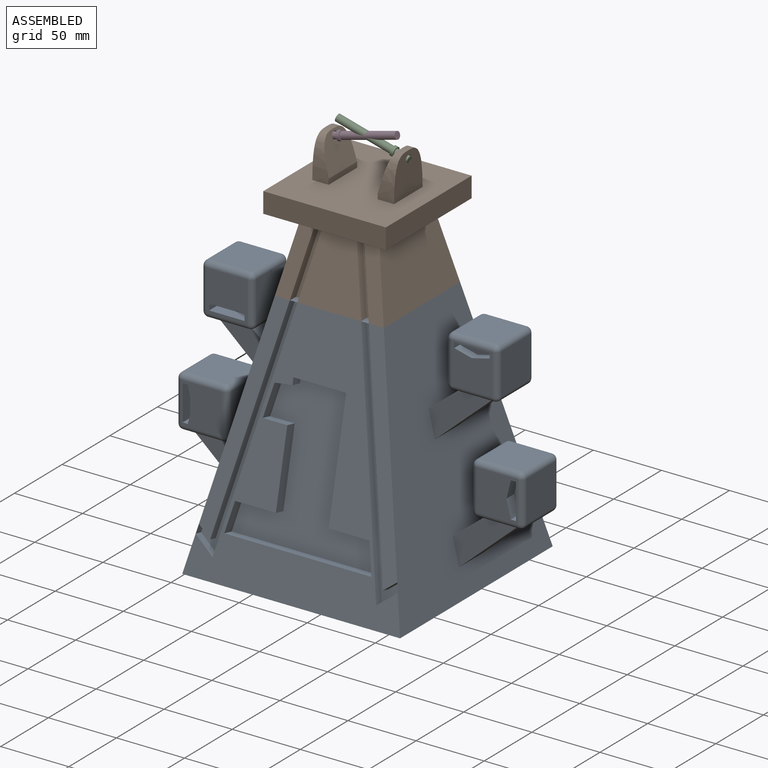
[diagram: assembled view]
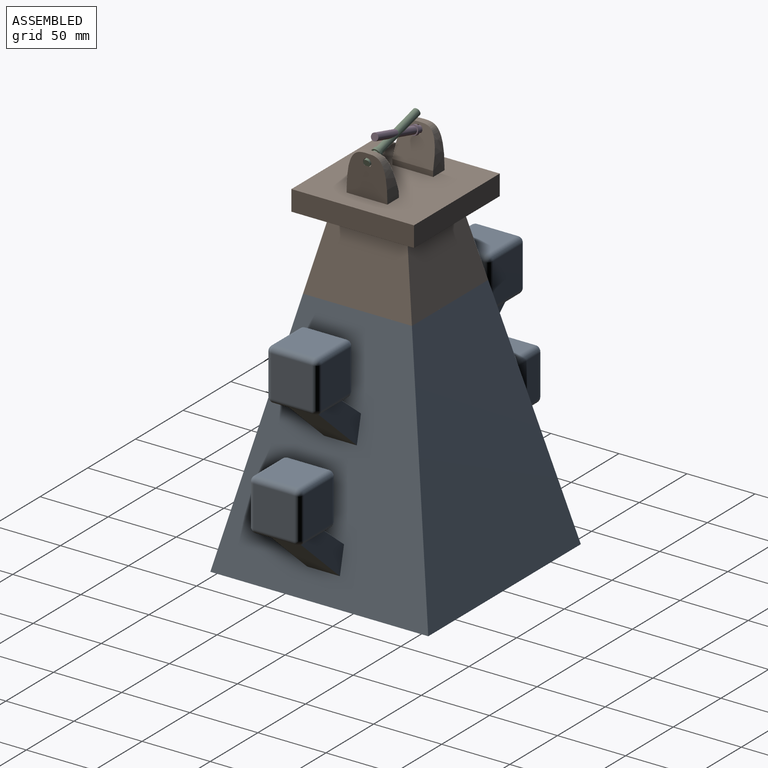
[diagram: assembled view, second angle]
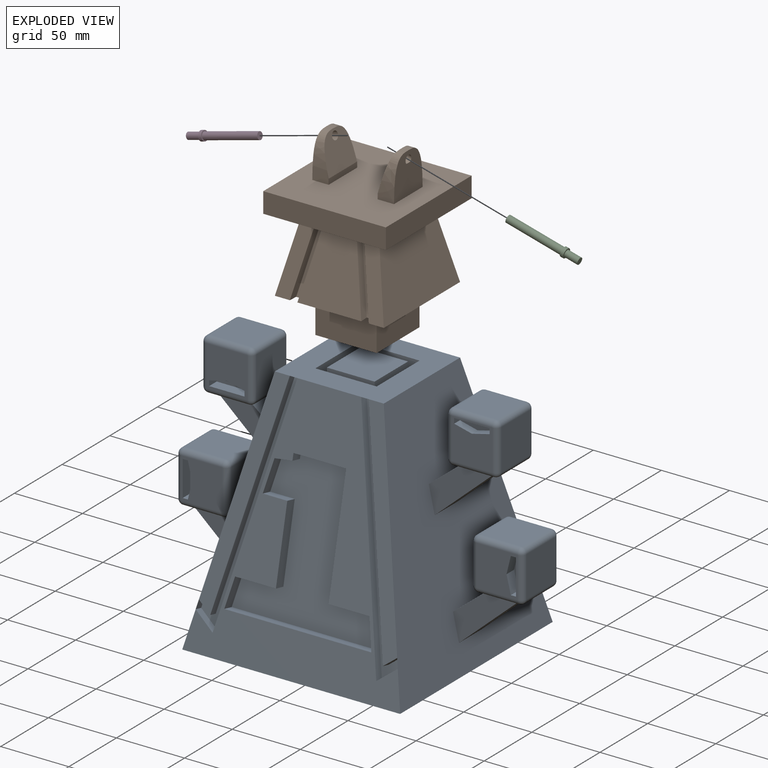
[diagram: exploded view]
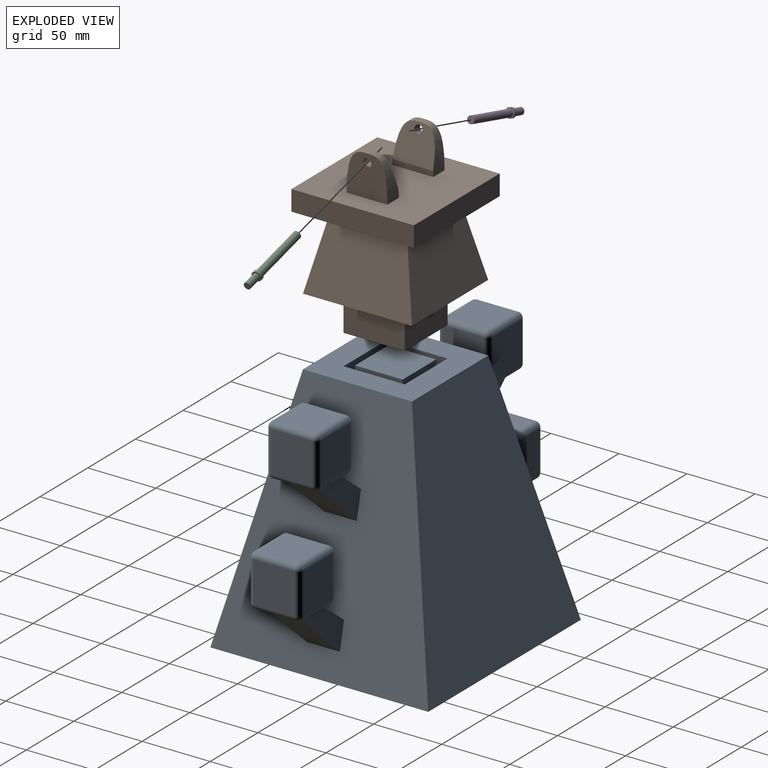
[diagram: exploded view, second angle]
ASSEMBLY  parts=4 mates=7
PART A: 300 faces, bbox 254.8x160x180 mm
  f0: plane 175x149.76mm, normal (-0.98,0,-0.22), area 19347.5mm2, adj f2,f4,f195,f205,f214,f219,f226,f227
  f1: plane 145x25mm, normal (1,0,0), area 3433mm2, adj f3,f4,f257,f284,f293,f295,f296
  f2: plane 149.76x25.27mm, normal (0,0.98,-0.22), area 3042mm2, adj f0,f4,f196,f208,f210,f276,f277,f280
  f3: plane 145x25mm, normal (0,-1,0), area 3433mm2, adj f1,f4,f257,f285,f286,f287,f288
  f4: plane 160x160mm, normal (0,0,-1), area 7778.2mm2, adj f0,f1,f2,f3,f5,f13,f14,f51
  f5: plane 180x160mm, normal (0,-0.98,0.22), area 10842.1mm2, adj f4,f12,f13,f14,f166,f167,f168,f169
  f6: plane 154.82x43.82mm, normal (0,-0.98,0.22), area 1708.4mm2, adj f12,f14,f182,f183
  f7: plane 154.82x43.82mm, normal (0,-0.98,0.22), area 1708.4mm2, adj f12,f13,f188,f189
  f8: plane 30x30mm, normal (0,-1,0), area 759.6mm2, adj f105,f106,f115,f116,f160,f161,f162,f163
  f9: plane 30x30mm, normal (0,-1,0), area 759.6mm2, adj f65,f66,f75,f76,f154,f155,f156,f157
  f10: plane 30x30mm, normal (0,-1,0), area 759.6mm2, adj f125,f126,f135,f136,f148,f149,f150,f151
  f11: plane 30x30mm, normal (0,-1,0), area 759.6mm2, adj f85,f86,f95,f96,f142,f143,f144,f145
  f12: plane 80x80mm, normal (0,0,1), area 4375mm2, adj f5,f6,f7,f13,f14,f51,f55,f56
  f13: plane 180x160mm, normal (0.98,0,0.22), area 21166.9mm2, adj f4,f5,f7,f12,f23,f24,f25,f26
  f14: plane 180x160mm, normal (-0.98,0,0.22), area 21166.9mm2, adj f4,f5,f6,f12,f15,f16,f17,f18
  f15: plane 44.26x39.37mm, normal (-0.66,0,-0.75), area 1421.6mm2, adj f14,f17,f18,f36
  f16: plane 24.54x24mm, normal (0.63,0,0.78), area 757.4mm2, adj f14,f17,f18,f36
  f17: plane 48.6x39.37mm, normal (0,-1,0), area 756.2mm2, adj f14,f15,f16,f36
  f18: plane 48.6x39.37mm, normal (0,1,0), area 756.2mm2, adj f14,f15,f16,f36
  f19: plane 44.83x39.89mm, normal (-0.66,0,-0.75), area 1440.2mm2, adj f14,f21,f22,f31
  f20: plane 25.17x24mm, normal (0.63,0,0.78), area 777.1mm2, adj f14,f21,f22,f31
  f21: plane 49.17x39.89mm, normal (0,-1,0), area 768.6mm2, adj f14,f19,f20,f31
  f22: plane 49.17x39.89mm, normal (0,1,0), area 768.6mm2, adj f14,f19,f20,f31
  f23: plane 44.83x39.89mm, normal (0.66,0,-0.75), area 1440.2mm2, adj f13,f25,f26,f49
  f24: plane 25.17x24mm, normal (-0.63,0,0.78), area 777.1mm2, adj f13,f25,f26,f49
  f25: plane 49.17x39.89mm, normal (0,-1,0), area 768.6mm2, adj f13,f23,f24,f49
  f26: plane 49.17x39.89mm, normal (0,1,0), area 768.6mm2, adj f13,f23,f24,f49
  f27: plane 44.26x39.37mm, normal (0.66,0,-0.75), area 1421.6mm2, adj f13,f29,f30,f42
  f28: plane 24.54x24mm, normal (-0.63,0,0.78), area 757.4mm2, adj f13,f29,f30,f42
  f29: plane 48.6x39.37mm, normal (0,-1,0), area 756.2mm2, adj f13,f27,f28,f42
  f30: plane 48.6x39.37mm, normal (0,1,0), area 756.2mm2, adj f13,f27,f28,f42
  f31: plane 30x30mm, normal (0,0,-1), area 324mm2, adj f19,f20,f21,f22,f110,f115,f118,f121
  f32: plane 30x30mm, normal (1,0,0), area 900mm2, adj f107,f116,f117,f121
  f33: plane 30x30mm, normal (0,0,1), area 900mm2, adj f102,f106,f107,f108
  f34: plane 30x30mm, normal (-1,0,0), area 900mm2, adj f102,f105,f109,f110
  f35: plane 30x30mm, normal (0,1,0), area 900mm2, adj f108,f109,f117,f118
  f36: plane 30x30mm, normal (0,0,-1), area 322.6mm2, adj f15,f16,f17,f18,f127,f136,f137,f141
  f37: plane 30x30mm, normal (1,0,0), area 900mm2, adj f122,f126,f127,f128
  f38: plane 30x30mm, normal (0,0,1), area 900mm2, adj f122,f125,f129,f130
  f39: plane 30x30mm, normal (-1,0,0), area 900mm2, adj f130,f135,f138,f141
  f40: plane 30x30mm, normal (0,1,0), area 900mm2, adj f128,f129,f137,f138
  f41: plane 30x30mm, normal (-1,0,0), area 900mm2, adj f87,f96,f97,f101
  f42: plane 30x30mm, normal (0,0,-1), area 322.6mm2, adj f27,f28,f29,f30,f82,f86,f87,f88
  f43: plane 30x30mm, normal (1,0,0), area 900mm2, adj f82,f85,f89,f90
  f44: plane 30x30mm, normal (0,0,1), area 900mm2, adj f90,f95,f98,f101
  f45: plane 30x30mm, normal (0,1,0), area 900mm2, adj f88,f89,f97,f98
  f46: plane 30x30mm, normal (1,0,0), area 900mm2, adj f67,f76,f77,f81
  f47: plane 30x30mm, normal (0,0,1), area 900mm2, adj f62,f66,f67,f68
  f48: plane 30x30mm, normal (-1,0,0), area 900mm2, adj f62,f65,f69,f70
  f49: plane 30x30mm, normal (0,0,-1), area 324mm2, adj f23,f24,f25,f26,f70,f75,f78,f81
  f50: plane 30x30mm, normal (0,1,0), area 900mm2, adj f68,f69,f77,f78
  f51: plane 180x160mm, normal (0,0.98,0.22), area 22126.9mm2, adj f4,f12,f13,f14
  f52: plane 35x30mm, normal (0,1,0), area 1050mm2, adj f53,f59,f60,f61
  f53: plane 35x30mm, normal (1,0,0), area 1050mm2, adj f52,f54,f60,f61
  f54: plane 35x30mm, normal (0,-1,0), area 1050mm2, adj f53,f59,f60,f61
  f55: plane 45x30mm, normal (-1,0,0), area 1350mm2, adj f12,f56,f58,f60
  f56: plane 45x30mm, normal (0,-1,0), area 1350mm2, adj f12,f55,f57,f60
  f57: plane 45x30mm, normal (1,0,0), area 1350mm2, adj f12,f56,f58,f60
  f58: plane 45x30mm, normal (0,1,0), area 1350mm2, adj f12,f55,f57,f60
  f59: plane 35x30mm, normal (-1,0,0), area 1050mm2, adj f52,f54,f60,f61
  f60: plane 45x45mm, normal (0,0,1), area 800mm2, adj f52,f53,f54,f55,f56,f57,f58,f59
  f61: plane 35x35mm, normal (0,0,1), area 1225mm2, adj f52,f53,f54,f59
  f62: cylinder r=4mm len=30mm, axis (0,1,0), area 188.5mm2, adj f47,f48,f63,f64
  f63: sphere r=4mm, area 25.1mm2, adj f62,f65,f66
  f64: sphere r=4mm, area 25.1mm2, adj f62,f68,f69
  f65: cylinder r=4mm len=30mm, axis (0,0,1), area 188.5mm2, adj f9,f48,f63,f71
  f66: cylinder r=4mm len=30mm, axis (1,0,0), area 188.5mm2, adj f9,f47,f63,f72
  f67: cylinder r=4mm len=30mm, axis (0,1,0), area 188.5mm2, adj f46,f47,f72,f73
  f68: cylinder r=4mm len=30mm, axis (-1,0,0), area 188.5mm2, adj f47,f50,f64,f73
  f69: cylinder r=4mm len=30mm, axis (0,0,-1), area 188.5mm2, adj f48,f50,f64,f74
  f70: cylinder r=4mm len=30mm, axis (0,-1,0), area 188.5mm2, adj f48,f49,f71,f74
  f71: sphere r=4mm, area 25.1mm2, adj f65,f70,f75
  f72: sphere r=4mm, area 25.1mm2, adj f66,f67,f76
  f73: sphere r=4mm, area 25.1mm2, adj f67,f68,f77
  f74: sphere r=4mm, area 25.1mm2, adj f69,f70,f78
  f75: cylinder r=4mm len=30mm, axis (-1,0,0), area 188.5mm2, adj f9,f49,f71,f79
  f76: cylinder r=4mm len=30mm, axis (0,0,-1), area 188.5mm2, adj f9,f46,f72,f79
  f77: cylinder r=4mm len=30mm, axis (0,0,1), area 188.5mm2, adj f46,f50,f73,f80
  f78: cylinder r=4mm len=30mm, axis (1,0,0), area 188.5mm2, adj f49,f50,f74,f80
  f79: sphere r=4mm, area 25.1mm2, adj f75,f76,f81
  f80: sphere r=4mm, area 25.1mm2, adj f77,f78,f81
  f81: cylinder r=4mm len=30mm, axis (0,-1,0), area 188.5mm2, adj f46,f49,f79,f80
  f82: cylinder r=4mm len=30mm, axis (0,1,0), area 188.5mm2, adj f42,f43,f83,f84
  f83: sphere r=4mm, area 25.1mm2, adj f82,f85,f86
  f84: sphere r=4mm, area 25.1mm2, adj f82,f88,f89
  f85: cylinder r=4mm len=30mm, axis (0,0,-1), area 188.5mm2, adj f11,f43,f83,f91
  f86: cylinder r=4mm len=30mm, axis (-1,0,0), area 188.5mm2, adj f11,f42,f83,f92
  f87: cylinder r=4mm len=30mm, axis (0,1,0), area 188.5mm2, adj f41,f42,f92,f93
  f88: cylinder r=4mm len=30mm, axis (1,0,0), area 188.5mm2, adj f42,f45,f84,f93
  f89: cylinder r=4mm len=30mm, axis (0,0,1), area 188.5mm2, adj f43,f45,f84,f94
  f90: cylinder r=4mm len=30mm, axis (0,1,0), area 188.5mm2, adj f43,f44,f91,f94
  f91: sphere r=4mm, area 25.1mm2, adj f85,f90,f95
  f92: sphere r=4mm, area 25.1mm2, adj f86,f87,f96
  f93: sphere r=4mm, area 25.1mm2, adj f87,f88,f97
  f94: sphere r=4mm, area 25.1mm2, adj f89,f90,f98
  f95: cylinder r=4mm len=30mm, axis (1,0,0), area 188.5mm2, adj f11,f44,f91,f99
  f96: cylinder r=4mm len=30mm, axis (0,0,1), area 188.5mm2, adj f11,f41,f92,f99
  f97: cylinder r=4mm len=30mm, axis (0,0,-1), area 188.5mm2, adj f41,f45,f93,f100
  f98: cylinder r=4mm len=30mm, axis (-1,0,0), area 188.5mm2, adj f44,f45,f94,f100
  f99: sphere r=4mm, area 25.1mm2, adj f95,f96,f101
  f100: sphere r=4mm, area 25.1mm2, adj f97,f98,f101
  f101: cylinder r=4mm len=30mm, axis (0,1,0), area 188.5mm2, adj f41,f44,f99,f100
  f102: cylinder r=4mm len=30mm, axis (0,1,0), area 188.5mm2, adj f33,f34,f103,f104
  f103: sphere r=4mm, area 25.1mm2, adj f102,f105,f106
  f104: sphere r=4mm, area 25.1mm2, adj f102,f108,f109
  f105: cylinder r=4mm len=30mm, axis (0,0,1), area 188.5mm2, adj f8,f34,f103,f111
  f106: cylinder r=4mm len=30mm, axis (1,0,0), area 188.5mm2, adj f8,f33,f103,f112
  f107: cylinder r=4mm len=30mm, axis (0,1,0), area 188.5mm2, adj f32,f33,f112,f113
  f108: cylinder r=4mm len=30mm, axis (-1,0,0), area 188.5mm2, adj f33,f35,f104,f113
  f109: cylinder r=4mm len=30mm, axis (0,0,-1), area 188.5mm2, adj f34,f35,f104,f114
  f110: cylinder r=4mm len=30mm, axis (0,-1,0), area 188.5mm2, adj f31,f34,f111,f114
  f111: sphere r=4mm, area 25.1mm2, adj f105,f110,f115
  f112: sphere r=4mm, area 25.1mm2, adj f106,f107,f116
  f113: sphere r=4mm, area 25.1mm2, adj f107,f108,f117
  f114: sphere r=4mm, area 25.1mm2, adj f109,f110,f118
  f115: cylinder r=4mm len=30mm, axis (-1,0,0), area 188.5mm2, adj f8,f31,f111,f119
  f116: cylinder r=4mm len=30mm, axis (0,0,-1), area 188.5mm2, adj f8,f32,f112,f119
  f117: cylinder r=4mm len=30mm, axis (0,0,1), area 188.5mm2, adj f32,f35,f113,f120
  f118: cylinder r=4mm len=30mm, axis (1,0,0), area 188.5mm2, adj f31,f35,f114,f120
  f119: sphere r=4mm, area 25.1mm2, adj f115,f116,f121
  f120: sphere r=4mm, area 25.1mm2, adj f117,f118,f121
  f121: cylinder r=4mm len=30mm, axis (0,-1,0), area 188.5mm2, adj f31,f32,f119,f120
  f122: cylinder r=4mm len=30mm, axis (0,1,0), area 188.5mm2, adj f37,f38,f123,f124
  f123: sphere r=4mm, area 25.1mm2, adj f122,f125,f126
  f124: sphere r=4mm, area 25.1mm2, adj f122,f128,f129
  f125: cylinder r=4mm len=30mm, axis (1,0,0), area 188.5mm2, adj f10,f38,f123,f131
  f126: cylinder r=4mm len=30mm, axis (0,0,-1), area 188.5mm2, adj f10,f37,f123,f132
  f127: cylinder r=4mm len=30mm, axis (0,1,0), area 188.5mm2, adj f36,f37,f132,f133
  f128: cylinder r=4mm len=30mm, axis (0,0,1), area 188.5mm2, adj f37,f40,f124,f133
  f129: cylinder r=4mm len=30mm, axis (-1,0,0), area 188.5mm2, adj f38,f40,f124,f134
  f130: cylinder r=4mm len=30mm, axis (0,1,0), area 188.5mm2, adj f38,f39,f131,f134
  f131: sphere r=4mm, area 25.1mm2, adj f125,f130,f135
  f132: sphere r=4mm, area 25.1mm2, adj f126,f127,f136
  f133: sphere r=4mm, area 25.1mm2, adj f127,f128,f137
  f134: sphere r=4mm, area 25.1mm2, adj f129,f130,f138
  f135: cylinder r=4mm len=30mm, axis (0,0,1), area 188.5mm2, adj f10,f39,f131,f139
  f136: cylinder r=4mm len=30mm, axis (-1,0,0), area 188.5mm2, adj f10,f36,f132,f139
  f137: cylinder r=4mm len=30mm, axis (1,0,0), area 188.5mm2, adj f36,f40,f133,f140
  f138: cylinder r=4mm len=30mm, axis (0,0,-1), area 188.5mm2, adj f39,f40,f134,f140
  f139: sphere r=4mm, area 25.1mm2, adj f135,f136,f141
  f140: sphere r=4mm, area 25.1mm2, adj f137,f138,f141
  f141: cylinder r=4mm len=30mm, axis (0,1,0), area 188.5mm2, adj f36,f39,f139,f140
  f142: plane 26x6mm, normal (0,0,-1), area 156mm2, adj f11,f143,f146,f147
  f143: plane 6x3.8mm, normal (1,0,0), area 22.8mm2, adj f11,f142,f144,f147
  f144: plane 13x6mm, normal (0.24,0,0.97), area 80.3mm2, adj f11,f143,f145,f147
  f145: plane 13x6mm, normal (-0.24,0,0.97), area 80.3mm2, adj f11,f144,f146,f147
  f146: plane 6x3.8mm, normal (-1,0,0), area 22.8mm2, adj f11,f142,f145,f147
  f147: plane 26x7mm, normal (0,-1,0), area 140.4mm2, adj f142,f143,f144,f145,f146
  f148: plane 26x8mm, normal (0,0,1), area 208mm2, adj f10,f149,f152,f153
  f149: plane 8x3.8mm, normal (-1,0,0), area 30.4mm2, adj f10,f148,f150,f153
  f150: plane 13x8mm, normal (-0.24,0,-0.97), area 107.1mm2, adj f10,f149,f151,f153
  f151: plane 13x8mm, normal (0.24,0,-0.97), area 107.1mm2, adj f10,f150,f152,f153
  f152: plane 8x3.8mm, normal (1,0,0), area 30.4mm2, adj f10,f148,f151,f153
  f153: plane 26x7mm, normal (0,-1,0), area 140.4mm2, adj f148,f149,f150,f151,f152
  f154: plane 26x8mm, normal (-1,0,0), area 208mm2, adj f9,f155,f158,f159
  f155: plane 8x3.8mm, normal (0,0,-1), area 30.4mm2, adj f9,f154,f156,f159
  f156: plane 13x8mm, normal (0.97,0,-0.24), area 107.1mm2, adj f9,f155,f157,f159
  f157: plane 13x8mm, normal (0.97,0,0.24), area 107.1mm2, adj f9,f156,f158,f159
  f158: plane 8x3.8mm, normal (0,0,1), area 30.4mm2, adj f9,f154,f157,f159
  f159: plane 26x7mm, normal (0,-1,0), area 140.4mm2, adj f154,f155,f156,f157,f158
  f160: plane 26x8mm, normal (1,0,0), area 208mm2, adj f8,f161,f164,f165
  f161: plane 8x3.8mm, normal (0,0,1), area 30.4mm2, adj f8,f160,f162,f165
  f162: plane 13x8mm, normal (-0.97,0,0.24), area 107.1mm2, adj f8,f161,f163,f165
  f163: plane 13x8mm, normal (-0.97,0,-0.24), area 107.1mm2, adj f8,f162,f164,f165
  f164: plane 8x3.8mm, normal (0,0,-1), area 30.4mm2, adj f8,f160,f163,f165
  f165: plane 26x7mm, normal (0,-1,0), area 140.4mm2, adj f160,f161,f162,f163,f164
  f166: plane 24.63x12.9mm, normal (0.98,-0.05,-0.21), area 192mm2, adj f5,f167,f177,f178
  f167: plane 18x7.81mm, normal (0,0.22,0.98), area 144mm2, adj f5,f166,f168,f178
  f168: plane 55.43x19.74mm, normal (1,0,0), area 440mm2, adj f5,f167,f169,f178
  f169: plane 30x7.81mm, normal (0,-0.22,-0.98), area 240mm2, adj f5,f168,f170,f178
  f170: plane 22.72x12.47mm, normal (0.98,-0.05,-0.21), area 176mm2, adj f5,f169,f171,f178
  f171: plane 108x7.81mm, normal (0,0.22,0.98), area 864mm2, adj f5,f170,f172,f178
  f172: plane 22.72x12.47mm, normal (-0.98,-0.05,-0.21), area 176mm2, adj f5,f171,f173,f178
  f173: plane 30x7.81mm, normal (0,-0.22,-0.98), area 240mm2, adj f5,f172,f174,f178
  f174: plane 84.71x26.25mm, normal (-1,0,0), area 680mm2, adj f5,f173,f175,f178
  f175: plane 38.67x7.81mm, normal (0,-0.22,-0.98), area 309.4mm2, adj f5,f174,f176,f178
  f176: plane 8.87x6.53mm, normal (1,0,0), area 39.3mm2, adj f5,f175,f177,f178
  f177: plane 12.91x8.17mm, normal (0.13,-0.22,-0.97), area 104.1mm2, adj f5,f166,f176,f178
  f178: plane 108x103.96mm, normal (0,-0.98,0.22), area 5881.9mm2, adj f166,f167,f168,f169,f170,f171,f172,f173
  f179: plane 14.13x12.19mm, normal (0.62,0.17,0.77), area 108mm2, adj f5,f180,f184,f185
  f180: plane 166.13x42.49mm, normal (-0.98,0.05,0.21), area 1036.6mm2, adj f5,f179,f181,f185
  f181: plane 5.86x5.52mm, normal (0,-0.22,-0.98), area 33.1mm2, adj f12,f180,f182,f185
  f182: plane 156.13x40.26mm, normal (0.98,-0.05,-0.21), area 973.7mm2, adj f6,f181,f183,f185
  f183: plane 9.42x8.56mm, normal (-0.62,-0.17,-0.77), area 72mm2, adj f6,f182,f184,f185
  f184: plane 7.67x7.27mm, normal (0.98,-0.05,-0.21), area 40.1mm2, adj f14,f179,f183,f185
  f185: plane 164.83x50.75mm, normal (0,-0.98,0.22), area 993mm2, adj f179,f180,f181,f182,f183,f184
  f186: plane 14.13x12.19mm, normal (-0.62,0.17,0.77), area 108mm2, adj f5,f187,f191,f192
  f187: plane 7.67x7.27mm, normal (-0.98,-0.05,-0.21), area 40.1mm2, adj f13,f186,f188,f192
  f188: plane 9.42x8.56mm, normal (0.62,-0.17,-0.77), area 72mm2, adj f7,f187,f189,f192
  f189: plane 156.13x40.26mm, normal (-0.98,-0.05,-0.21), area 973.7mm2, adj f7,f188,f190,f192
  f190: plane 5.86x5.52mm, normal (0,-0.22,-0.98), area 33.1mm2, adj f12,f189,f191,f192
  f191: plane 166.13x42.49mm, normal (0.98,0.05,0.21), area 1036.6mm2, adj f5,f186,f190,f192
  f192: plane 164.83x50.75mm, normal (0,-0.98,0.22), area 993mm2, adj f186,f187,f188,f189,f190,f191
  f193: plane 170.89x52.55mm, normal (0,0.98,-0.22), area 2197mm2, adj f196,f198,f199,f200,f207,f209,f210,f219
  f194: plane 28x17.15mm, normal (0,1,0), area 352.9mm2, adj f201,f220,f221,f238,f239,f261,f262,f263
  f195: plane 170.89x52.55mm, normal (0,0.98,-0.22), area 2453mm2, adj f0,f196,f197,f208,f219,f271,f280,f281
  f196: plane 120.4x7.81mm, normal (0,-0.22,-0.98), area 870.6mm2, adj f2,f193,f195,f208,f270,f271,f275,f277
  f197: plane 29.03x7.81mm, normal (0,0.22,0.98), area 185.9mm2, adj f195,f211,f271,f272,f275,f283
  f198: plane 32.62x9.1mm, normal (-0.98,0.05,0.21), area 67.5mm2, adj f193,f200,f268,f275
  f199: plane 29.03x7.81mm, normal (0,0.22,0.98), area 185.9mm2, adj f193,f207,f212,f269,f270,f275
  f200: plane 12.05x7.92mm, normal (-0.13,0.22,0.97), area 49.6mm2, adj f193,f198,f209,f211,f274,f275
  f201: plane 28x28mm, normal (1,0,0), area 706.4mm2, adj f194,f217,f238,f240,f241,f263
  f202: plane 48.45x43.11mm, normal (0.66,0,0.75), area 902.6mm2, adj f203,f210,f225,f233,f265,f267
  f203: plane 46.46x43.11mm, normal (0,1,0), area 383mm2, adj f202,f210,f224,f233,f265
  f204: plane 17.5x8mm, normal (-0.97,0,-0.24), area 119mm2, adj f205,f206,f216,f226,f250,f264
  f205: plane 46.46x43.11mm, normal (0,1,0), area 383mm2, adj f0,f204,f226,f227,f250
  f206: plane 31.5x12.15mm, normal (0,1,0), area 300.3mm2, adj f204,f226,f247,f248,f250,f264
  f207: plane 45.23x15.62mm, normal (0.98,-0.05,-0.21), area 276.3mm2, adj f193,f199,f212,f268
  f208: plane 21.16x10.27mm, normal (-0.98,-0.05,-0.21), area 124.9mm2, adj f2,f195,f196,f280
  f209: plane 43.19x15.46mm, normal (0.98,-0.05,-0.21), area 267.6mm2, adj f193,f200,f211,f219
  f210: plane 175x149.76mm, normal (0.98,0,-0.22), area 19347.5mm2, adj f2,f4,f193,f202,f203,f213,f219,f220
  f211: plane 118.98x74.16mm, normal (0,0.98,-0.22), area 2759.8mm2, adj f197,f200,f209,f219,f272,f273,f274,f283
  f212: plane 43.93x21.31mm, normal (0,0.98,-0.22), area 739.4mm2, adj f199,f207,f268,f269
  f213: plane 142.23x32.49mm, normal (0,0.98,-0.22), area 150.2mm2, adj f210,f219,f278,f279
  f214: plane 142.23x32.49mm, normal (0,0.98,-0.22), area 150.2mm2, adj f0,f219,f281,f282
  f215: plane 28x19.3mm, normal (0,1,0), area 492.1mm2, adj f233,f234,f235,f265,f266
  f216: plane 28x19.3mm, normal (0,1,0), area 492.1mm2, adj f204,f248,f249,f250,f264
  f217: plane 28x18.3mm, normal (0,1,0), area 464.1mm2, adj f201,f239,f240,f262,f263
  f218: plane 28x19.3mm, normal (0,1,0), area 492.1mm2, adj f242,f243,f244,f258,f259
  f219: plane 71.98x71.98mm, normal (0,0,-1), area 1962.3mm2, adj f0,f193,f195,f209,f210,f211,f213,f214
  f220: plane 47.88x42.58mm, normal (0.66,0,0.75), area 891mm2, adj f194,f210,f222,f223,f238,f261
  f221: plane 41.81x33.8mm, normal (-0.63,0,-0.78), area 746.3mm2, adj f194,f210,f222,f223,f238,f261
  f222: plane 45.33x38.58mm, normal (0,1,0), area 354.3mm2, adj f210,f220,f221,f261
  f223: plane 49.83x42.58mm, normal (0,-1,0), area 387.3mm2, adj f210,f220,f221,f238
  f224: plane 42.43x34.33mm, normal (-0.63,0,-0.78), area 764.1mm2, adj f203,f210,f225,f233
  f225: plane 50.4x43.11mm, normal (0,-1,0), area 391.4mm2, adj f202,f210,f224,f233
  f226: plane 48.45x43.11mm, normal (-0.66,0,0.75), area 902.6mm2, adj f0,f204,f205,f206,f228,f250
  f227: plane 42.43x34.33mm, normal (0.63,0,-0.78), area 764.1mm2, adj f0,f205,f228,f250
  f228: plane 50.4x43.11mm, normal (0,-1,0), area 391.4mm2, adj f0,f226,f227,f250
  f229: plane 47.88x42.58mm, normal (-0.66,0,0.75), area 897.1mm2, adj f0,f231,f232,f243
  f230: plane 41.81x33.8mm, normal (0.63,0,-0.78), area 752.7mm2, adj f0,f231,f232,f243
  f231: plane 49.83x42.58mm, normal (0,1,0), area 387.3mm2, adj f0,f229,f230,f243
  f232: plane 49.83x42.58mm, normal (0,-1,0), area 387.3mm2, adj f0,f229,f230,f243
  f233: plane 28x28mm, normal (0,0,1), area 607.6mm2, adj f202,f203,f215,f224,f225,f234,f236,f237
  f234: plane 28x28mm, normal (-1,0,0), area 784mm2, adj f215,f233,f235,f237
  f235: plane 28x28mm, normal (0,0,-1), area 714.4mm2, adj f215,f234,f236,f237,f266,f267
  f236: plane 28x20mm, normal (1,0,0), area 560mm2, adj f233,f235,f237,f267
  f237: plane 28x28mm, normal (0,-1,0), area 784mm2, adj f233,f234,f235,f236
  f238: plane 28x20mm, normal (0,0,1), area 455.7mm2, adj f194,f201,f220,f221,f223,f239,f241
  f239: plane 28x28mm, normal (-1,0,0), area 706.4mm2, adj f194,f217,f238,f240,f241,f262
  f240: plane 28x28mm, normal (0,0,-1), area 784mm2, adj f201,f217,f239,f241
  f241: plane 28x28mm, normal (0,-1,0), area 784mm2, adj f201,f238,f239,f240
  f242: plane 28x28mm, normal (1,0,0), area 731.8mm2, adj f218,f243,f245,f246,f258,f260
  f243: plane 28x28mm, normal (0,0,1), area 671.7mm2, adj f218,f229,f230,f231,f232,f242,f244,f246
  f244: plane 28x28mm, normal (-1,0,0), area 731.8mm2, adj f218,f243,f245,f246,f259,f260
  f245: plane 28x22mm, normal (0,0,-1), area 616mm2, adj f242,f244,f246,f260
  f246: plane 28x28mm, normal (0,-1,0), area 784mm2, adj f242,f243,f244,f245
  f247: plane 28x20mm, normal (-1,0,0), area 560mm2, adj f206,f248,f250,f251
  f248: plane 28x28mm, normal (0,0,-1), area 714.4mm2, adj f206,f216,f247,f249,f251,f264
  f249: plane 28x28mm, normal (1,0,0), area 784mm2, adj f216,f248,f250,f251
  f250: plane 28x28mm, normal (0,0,1), area 607.6mm2, adj f204,f205,f206,f216,f226,f227,f228,f247
  f251: plane 28x28mm, normal (0,-1,0), area 784mm2, adj f247,f248,f249,f250
  f252: plane 175x149.76mm, normal (0,-0.98,-0.22), area 19678.4mm2, adj f0,f4,f210,f219,f297,f298,f299
  f253: plane 55x30mm, normal (1,0,0), area 1650mm2, adj f219,f254,f256,f257
  f254: plane 55x30mm, normal (0,1,0), area 1650mm2, adj f219,f253,f255,f257
  f255: plane 55x30mm, normal (-1,0,0), area 1650mm2, adj f219,f254,f256,f257
  f256: plane 55x30mm, normal (0,-1,0), area 1650mm2, adj f219,f253,f255,f257
  f257: plane 55x55mm, normal (0,0,-1), area 2400mm2, adj f1,f3,f253,f254,f255,f256,f284,f285
  f258: plane 14x6mm, normal (-0.24,0,-0.97), area 86.5mm2, adj f218,f242,f259,f260
  f259: plane 14x6mm, normal (0.24,0,-0.97), area 86.5mm2, adj f218,f244,f258,f260
  f260: plane 28x12.15mm, normal (0,1,0), area 291.9mm2, adj f242,f244,f245,f258,f259
  f261: plane 8.47x1mm, normal (0,0,-1), area 8.5mm2, adj f194,f220,f221,f222
  f262: plane 14x8mm, normal (0.24,0,0.97), area 115.3mm2, adj f194,f217,f239,f263
  f263: plane 14x8mm, normal (-0.24,0,0.97), area 115.3mm2, adj f194,f201,f217,f262
  f264: plane 14x8mm, normal (-0.97,0,0.24), area 115.3mm2, adj f204,f206,f216,f248
  f265: plane 17.5x8mm, normal (0.97,0,-0.24), area 119mm2, adj f202,f203,f215,f233,f266,f267
  f266: plane 14x8mm, normal (0.97,0,0.24), area 115.3mm2, adj f215,f235,f265,f267
  f267: plane 31.5x12.15mm, normal (0,1,0), area 300.3mm2, adj f202,f233,f235,f236,f265,f266
  f268: plane 19.2x7.81mm, normal (0,-0.22,-0.98), area 107.7mm2, adj f193,f198,f207,f212,f269,f275
  f269: plane 45.66x17.57mm, normal (-1,0,0), area 360mm2, adj f199,f212,f268,f275
  f270: plane 31.18x8.79mm, normal (-0.98,0.05,0.21), area 64.5mm2, adj f193,f196,f199,f275
  f271: plane 31.18x8.79mm, normal (0.98,0.05,0.21), area 64.5mm2, adj f195,f196,f197,f275
  f272: plane 84.71x26.25mm, normal (1,0,0), area 680mm2, adj f197,f211,f273,f275
  f273: plane 48.67x7.81mm, normal (0,0.22,0.98), area 389.4mm2, adj f211,f272,f274,f275
  f274: plane 9x7.11mm, normal (-1,0,0), area 44mm2, adj f200,f211,f273,f275
  f275: plane 120.4x113.73mm, normal (0,0.98,-0.22), area 8238.9mm2, adj f196,f197,f198,f199,f200,f268,f269,f270
  f276: plane 14.57x12.35mm, normal (-0.62,-0.17,-0.77), area 110.5mm2, adj f2,f193,f210,f277
  f277: plane 21.16x10.27mm, normal (0.98,-0.05,-0.21), area 124.9mm2, adj f2,f193,f196,f276
  f278: plane 143.53x37.75mm, normal (-0.98,0.05,0.21), area 898.6mm2, adj f193,f213,f219,f279
  f279: plane 6.05x1.98mm, normal (0.62,0.17,0.77), area 7.7mm2, adj f193,f210,f213,f278
  f280: plane 14.57x12.35mm, normal (0.62,-0.17,-0.77), area 110.5mm2, adj f0,f2,f195,f208
  f281: plane 6.05x1.98mm, normal (-0.62,0.17,0.77), area 7.7mm2, adj f0,f195,f214,f282
  f282: plane 143.53x37.75mm, normal (0.98,0.05,0.21), area 898.6mm2, adj f195,f214,f219,f281
  f283: plane 120.28x32.59mm, normal (-0.98,-0.05,-0.21), area 752.4mm2, adj f195,f197,f211,f219
  f284: plane 145x25mm, normal (0,1,0), area 3433mm2, adj f1,f4,f257,f285,f297,f298,f299
  f285: plane 145x25mm, normal (-1,0,0), area 3433mm2, adj f3,f4,f257,f284,f289,f291,f292
  f286: plane 62.38x12mm, normal (-1,0,0), area 732.5mm2, adj f2,f3,f4,f288
  f287: plane 62.38x12mm, normal (1,0,0), area 732.5mm2, adj f2,f3,f4,f288
  f288: plane 59.71x16mm, normal (0,0,1), area 955.4mm2, adj f2,f3,f286,f287
  f289: plane 62x12mm, normal (0,1,0), area 732.2mm2, adj f4,f210,f285,f290,f292
  f290: plane 16x1.7mm, normal (-1,0,0), area 27.2mm2, adj f4,f210,f289,f291
  f291: plane 62x12mm, normal (0,-1,0), area 732.2mm2, adj f4,f210,f285,f290,f292
  f292: plane 59.71x16mm, normal (0,0,1), area 955.4mm2, adj f210,f285,f289,f291
  f293: plane 62x12mm, normal (0,-1,0), area 732.2mm2, adj f0,f1,f4,f294,f296
  f294: plane 16x1.7mm, normal (1,0,0), area 27.2mm2, adj f0,f4,f293,f295
  f295: plane 62x12mm, normal (0,1,0), area 732.2mm2, adj f0,f1,f4,f294,f296
  f296: plane 59.71x16mm, normal (0,0,1), area 955.4mm2, adj f0,f1,f293,f295
  f297: plane 62.38x12mm, normal (-1,0,0), area 732.5mm2, adj f4,f252,f284,f299
  f298: plane 62.38x12mm, normal (1,0,0), area 732.5mm2, adj f4,f252,f284,f299
  f299: plane 59.71x16mm, normal (0,0,1), area 955.4mm2, adj f252,f284,f297,f298
PART B: 45 faces, bbox 90x90x128 mm
  f0: plane 55x46.91mm, normal (0,-0.98,0.22), area 1954.3mm2, adj f18,f19,f38,f43
  f1: plane 55x23.25mm, normal (0,-0.98,0.22), area 621.5mm2, adj f7,f18,f19,f39
  f2: plane 30x30mm, normal (1,0,0), area 761mm2, adj f3,f30,f32,f35,f36
  f3: plane 90x90mm, normal (0,0,1), area 7380mm2, adj f2,f20,f21,f22,f23,f24,f25,f26
  f4: plane 80x55mm, normal (0,0.98,0.22), area 3818.7mm2, adj f6,f7,f18,f19
  f5: plane 55x23.25mm, normal (0,-0.98,0.22), area 621.5mm2, adj f6,f18,f19,f42
  f6: plane 80x55mm, normal (0.98,0,0.22), area 3818.7mm2, adj f4,f5,f18,f19
  f7: plane 80x55mm, normal (-0.98,0,0.22), area 3818.7mm2, adj f1,f4,f18,f19
  f8: plane 35x28mm, normal (0,-1,0), area 980mm2, adj f9,f15,f16,f17
  f9: plane 35x28mm, normal (-1,0,0), area 980mm2, adj f8,f10,f16,f17
  f10: plane 35x28mm, normal (0,1,0), area 980mm2, adj f9,f15,f16,f17
  f11: plane 45x28mm, normal (1,0,0), area 1260mm2, adj f12,f14,f16,f18
  f12: plane 45x28mm, normal (0,1,0), area 1260mm2, adj f11,f13,f16,f18
  f13: plane 45x28mm, normal (-1,0,0), area 1260mm2, adj f12,f14,f16,f18
  f14: plane 45x28mm, normal (0,-1,0), area 1260mm2, adj f11,f13,f16,f18
  f15: plane 35x28mm, normal (1,0,0), area 980mm2, adj f8,f10,f16,f17
  f16: plane 45x45mm, normal (0,0,-1), area 800mm2, adj f8,f9,f10,f11,f12,f13,f14,f15
  f17: plane 35x35mm, normal (0,0,-1), area 1225mm2, adj f8,f9,f10,f15
  f18: plane 80x80mm, normal (0,0,-1), area 4307.2mm2, adj f0,f1,f4,f5,f6,f7,f11,f12
  f19: plane 90x90mm, normal (0,0,-1), area 5013.6mm2, adj f0,f1,f4,f5,f6,f7,f20,f21
  f20: plane 90x15mm, normal (1,0,0), area 1350mm2, adj f3,f19,f21,f23
  f21: plane 90x15mm, normal (0,1,0), area 1350mm2, adj f3,f19,f20,f22
  f22: plane 90x15mm, normal (-1,0,0), area 1350mm2, adj f3,f19,f21,f23
  f23: plane 90x15mm, normal (0,-1,0), area 1350mm2, adj f3,f19,f20,f22
  f24: plane 30x4.01mm, normal (1,0,0), area 119.9mm2, adj f3,f28,f29,f31
  f25: plane 30x30mm, normal (-1,0,0), area 761mm2, adj f3,f29,f31,f33,f34
  f26: plane 30x4.01mm, normal (-1,0,0), area 119.9mm2, adj f3,f27,f30,f32
  f27: plane 29.9x26mm, normal (-0.97,0,0.26), area 663.2mm2, adj f26,f30,f32,f36
  f28: plane 29.9x26mm, normal (0.97,0,0.26), area 663.2mm2, adj f24,f29,f31,f33
  f29: extruded ~30x15mm, area 314.3mm2, adj f3,f24,f25,f28,f31
  f30: extruded ~30x15mm, area 314.3mm2, adj f2,f3,f26,f27,f32
  f31: extruded ~30x15mm, area 314.3mm2, adj f3,f24,f25,f28,f29
  f32: extruded ~30x15mm, area 314.3mm2, adj f2,f3,f26,f27,f30
  f33: cylinder r=3mm len=8.32mm, axis (0.97,0,0.26), area 120.6mm2, adj f25,f28,f34
  f34: plane 4.3x0.88mm, normal (0.97,0,0.26), area 2.7mm2, adj f25,f33
  f35: plane 4.3x0.88mm, normal (-0.97,0,0.26), area 2.7mm2, adj f2,f36
  f36: cylinder r=3mm len=8.32mm, axis (-0.97,0,0.26), area 120.6mm2, adj f2,f27,f35
  f37: plane 53.7x17.45mm, normal (0,-0.98,0.22), area 303.4mm2, adj f18,f38,f39,f40
  f38: plane 55x18.08mm, normal (-0.98,0.05,0.21), area 341.8mm2, adj f0,f18,f37,f40
  f39: plane 55x18.08mm, normal (0.98,-0.05,-0.21), area 341.8mm2, adj f1,f18,f37,f40
  f40: plane 5.86x5.52mm, normal (0,-0.22,-0.98), area 33.1mm2, adj f19,f37,f38,f39
  f41: plane 53.7x17.45mm, normal (0,-0.98,0.22), area 303.4mm2, adj f18,f42,f43,f44
  f42: plane 55x18.08mm, normal (-0.98,-0.05,-0.21), area 341.8mm2, adj f5,f18,f41,f44
  f43: plane 55x18.08mm, normal (0.98,0.05,0.21), area 341.8mm2, adj f0,f18,f41,f44
  f44: plane 5.86x5.52mm, normal (0,-0.22,-0.98), area 33.1mm2, adj f19,f41,f42,f43
PART C: 7 faces, bbox 7x7x54.4 mm
  f0: cylinder r=3.5mm len=7mm, axis (0,0,-1), area 52.8mm2, adj f1,f2
  f1: plane 7x7mm, normal (0,0,1), area 15.6mm2, adj f0,f5
  f2: plane 7x7mm, normal (0,0,-1), area 18.8mm2, adj f0,f3
  f3: cylinder r=2.5mm len=10mm, axis (0,0,1), area 157.1mm2, adj f2,f4
  f4: plane 5x5mm, normal (0,0,-1), area 19.6mm2, adj f3
  f5: cylinder r=2.7mm len=42mm, axis (0,0,-1), area 712.5mm2, adj f1,f6
  f6: plane 5.4x5.4mm, normal (0,0,1), area 22.9mm2, adj f5
PART D: same geometry as C
PLACE A t=(-2.03,94.71,1.7)mm
PLACE B t=(-2.03,94.71,181.7)mm
PLACE C rot(axis=(0,-1,0),74.9deg) t=(20.79,94.84,277.44)mm
PLACE D rot(axis=(0,1,0),74.9deg) t=(-24.84,94.71,277.44)mm
MATE planar B.f17 <-> A.f61  axis (0,0,-1) through (-2.03,95.3,181.7)mm
MATE planar C.f3 <-> B.f35  axis (0.97,0,-0.26) through (28.52,94.84,275.36)mm
MATE cylindrical C.f3 <-> B.f36  axis (0.97,0,-0.26) through (28.52,94.84,275.36)mm
MATE planar B.f13 <-> A.f57  axis (-1,0,0) through (-24.53,94.71,153.7)mm
MATE planar D.f3 <-> B.f34  axis (-0.97,0,-0.26) through (-32.57,94.71,275.36)mm
MATE planar B.f14 <-> A.f58  axis (0,-1,0) through (-2.03,72.21,167.7)mm
MATE cylindrical D.f3 <-> B.f33  axis (-0.97,0,-0.26) through (-32.57,94.71,275.36)mm
